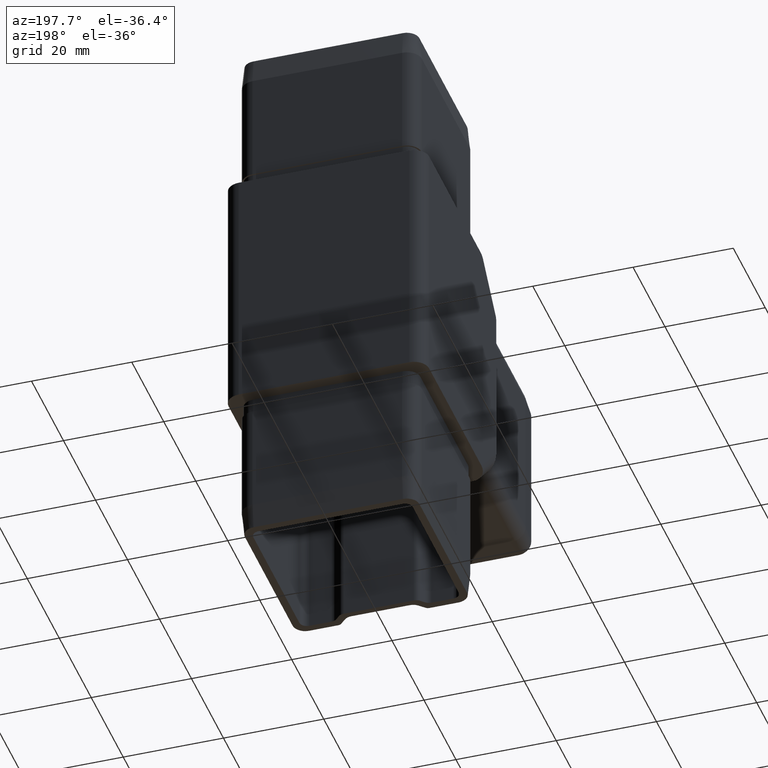
[diagram: clean part render]
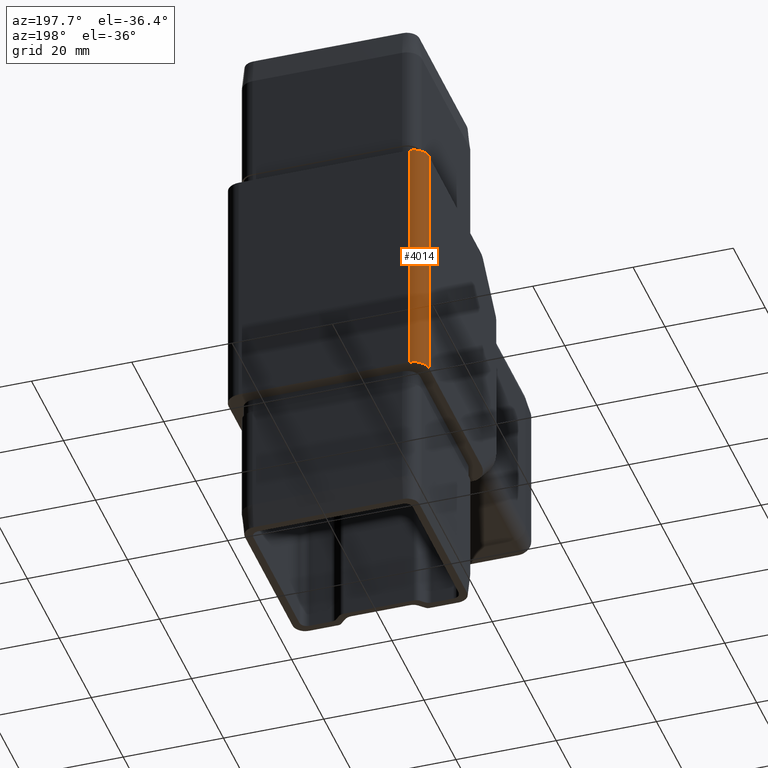
[diagram: same view with one face highlighted and labeled with its STEP entity id]
A machine part, auxiliary view. The second image highlights one B-rep face of the part: STEP entity #4014.
In plain terms, the highlighted cylindrical surface (edge-blend (fillet) strip) has radius 3 mm, axis along (0, 0, -1).
Its self-contained STEP definition (entity closure, byte-faithful):
#117 = DIRECTION ( 'NONE',  ( -1.000000000000000000, 0.0000000000000000000, 0.0000000000000000000 ) ) ;
#140 = EDGE_CURVE ( 'NONE', #3721, #18461, #442, .T. ) ;
#442 = LINE ( 'NONE', #18058, #15746 ) ;
#646 = AXIS2_PLACEMENT_3D ( 'NONE', #3718, #12683, #18571 ) ;
#1227 = CYLINDRICAL_SURFACE ( 'NONE', #14205, 2.999999999999999100 ) ;
#1595 = DIRECTION ( 'NONE',  ( 0.0000000000000000000, 0.0000000000000000000, -1.000000000000000000 ) ) ;
#2398 = VERTEX_POINT ( 'NONE', #11387 ) ;
#2813 = ORIENTED_EDGE ( 'NONE', *, *, #7473, .F. ) ;
#3014 = CARTESIAN_POINT ( 'NONE',  ( -17.00000000000000400, 19.50000000000000000, 25.00000000000000000 ) ) ;
#3718 = CARTESIAN_POINT ( 'NONE',  ( -17.00000000000000400, 19.50000000000000000, -25.00000000000000000 ) ) ;
#3721 = VERTEX_POINT ( 'NONE', #7989 ) ;
#3921 = EDGE_CURVE ( 'NONE', #2398, #11815, #11930, .T. ) ;
#4014 = ADVANCED_FACE ( 'NONE', ( #11424 ), #1227, .T. ) ;
#6123 = AXIS2_PLACEMENT_3D ( 'NONE', #14922, #17831, #13427 ) ;
#7039 = VECTOR ( 'NONE', #7472, 1000.000000000000000 ) ;
#7472 = DIRECTION ( 'NONE',  ( -0.0000000000000000000, -0.0000000000000000000, 1.000000000000000000 ) ) ;
#7473 = EDGE_CURVE ( 'NONE', #11815, #3721, #15899, .T. ) ;
#7989 = CARTESIAN_POINT ( 'NONE',  ( -20.00000000000000400, 19.50000000000000000, 25.00000000000000000 ) ) ;
#8807 = EDGE_CURVE ( 'NONE', #18461, #2398, #11456, .T. ) ;
#9891 = CARTESIAN_POINT ( 'NONE',  ( -20.00000000000000400, 19.50000000000000000, -25.00000000000000000 ) ) ;
#9951 = EDGE_LOOP ( 'NONE', ( #2813, #13294, #16081, #14989 ) ) ;
#10309 = CARTESIAN_POINT ( 'NONE',  ( -17.00000000000000400, 22.50000000000000000, 25.00000000000000000 ) ) ;
#11387 = CARTESIAN_POINT ( 'NONE',  ( -17.00000000000000400, 22.50000000000000000, -25.00000000000000000 ) ) ;
#11424 = FACE_OUTER_BOUND ( 'NONE', #9951, .T. ) ;
#11456 = CIRCLE ( 'NONE', #646, 2.999999999999999100 ) ;
#11815 = VERTEX_POINT ( 'NONE', #10309 ) ;
#11930 = LINE ( 'NONE', #17717, #7039 ) ;
#12683 = DIRECTION ( 'NONE',  ( 0.0000000000000000000, -0.0000000000000000000, -1.000000000000000000 ) ) ;
#13294 = ORIENTED_EDGE ( 'NONE', *, *, #3921, .F. ) ;
#13427 = DIRECTION ( 'NONE',  ( 1.000000000000000000, 0.0000000000000000000, 0.0000000000000000000 ) ) ;
#14205 = AXIS2_PLACEMENT_3D ( 'NONE', #3014, #1595, #117 ) ;
#14922 = CARTESIAN_POINT ( 'NONE',  ( -17.00000000000000400, 19.50000000000000000, 25.00000000000000000 ) ) ;
#14989 = ORIENTED_EDGE ( 'NONE', *, *, #140, .F. ) ;
#15746 = VECTOR ( 'NONE', #16330, 1000.000000000000000 ) ;
#15899 = CIRCLE ( 'NONE', #6123, 2.999999999999999100 ) ;
#16081 = ORIENTED_EDGE ( 'NONE', *, *, #8807, .F. ) ;
#16330 = DIRECTION ( 'NONE',  ( 0.0000000000000000000, 0.0000000000000000000, -1.000000000000000000 ) ) ;
#17717 = CARTESIAN_POINT ( 'NONE',  ( -17.00000000000000400, 22.50000000000000000, 25.00000000000000000 ) ) ;
#17831 = DIRECTION ( 'NONE',  ( -0.0000000000000000000, 0.0000000000000000000, 1.000000000000000000 ) ) ;
#18058 = CARTESIAN_POINT ( 'NONE',  ( -20.00000000000000400, 19.50000000000000000, 25.00000000000000000 ) ) ;
#18461 = VERTEX_POINT ( 'NONE', #9891 ) ;
#18571 = DIRECTION ( 'NONE',  ( 1.000000000000000000, 0.0000000000000000000, 0.0000000000000000000 ) ) ;